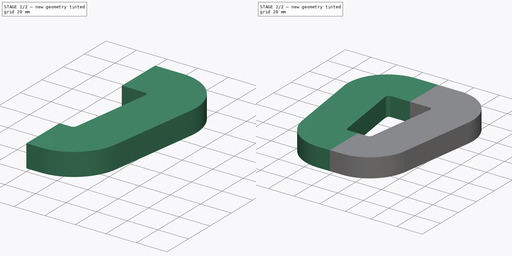
[diagram: build sequence overview — one tinted view per stage of 2, left to right]
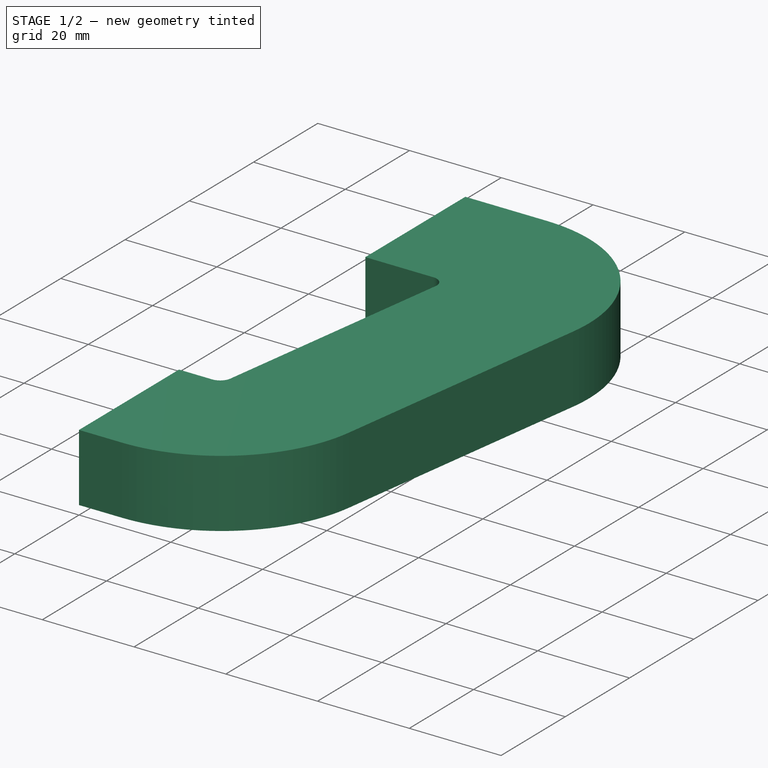
[diagram: stage 1 of 2 — iso view after this stage's code; geometry added in this stage tinted green]
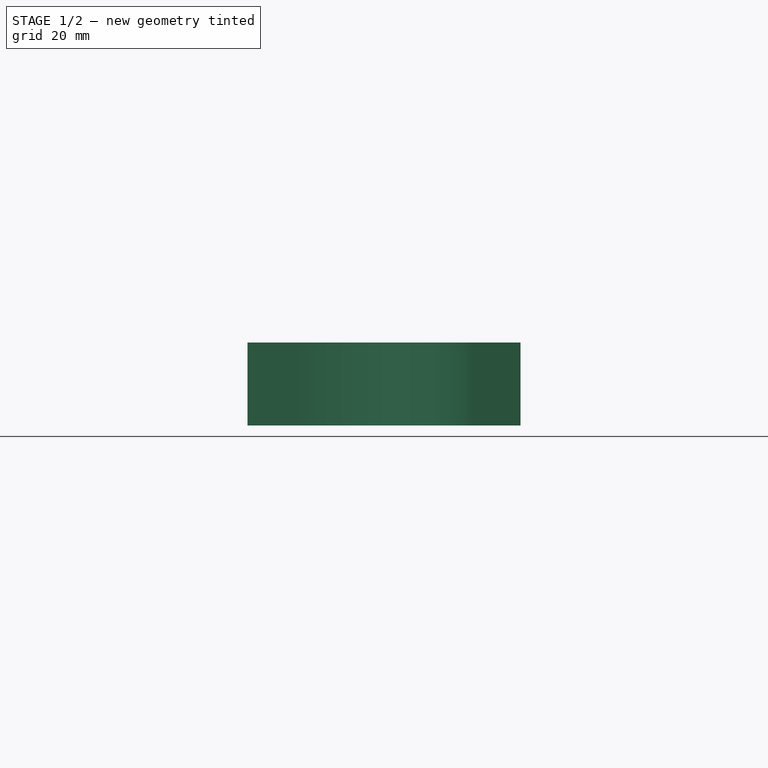
[diagram: stage 1 of 2 — front view after this stage's code; geometry added in this stage tinted green]
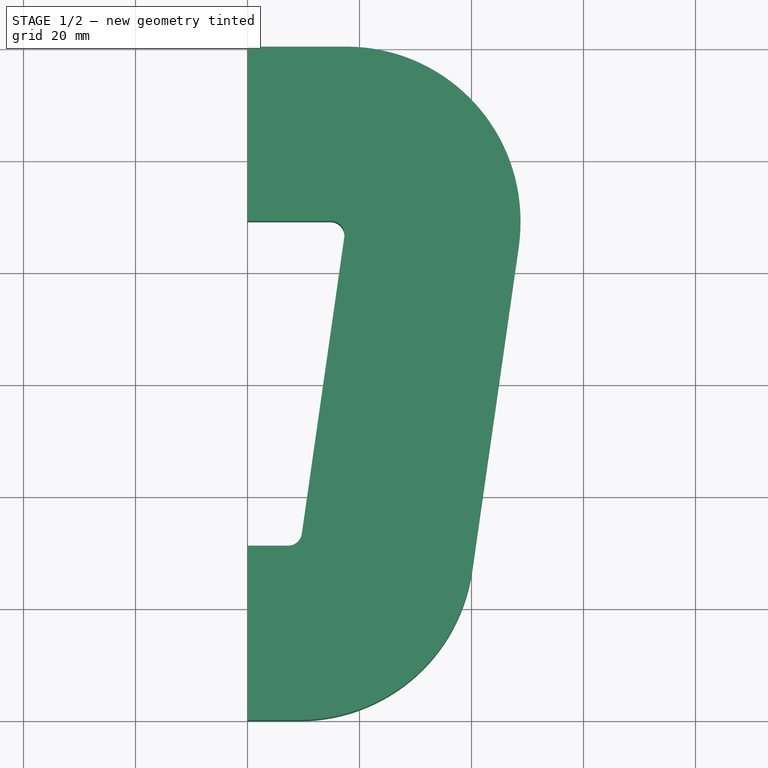
[diagram: stage 1 of 2 — top view after this stage's code; geometry added in this stage tinted green]
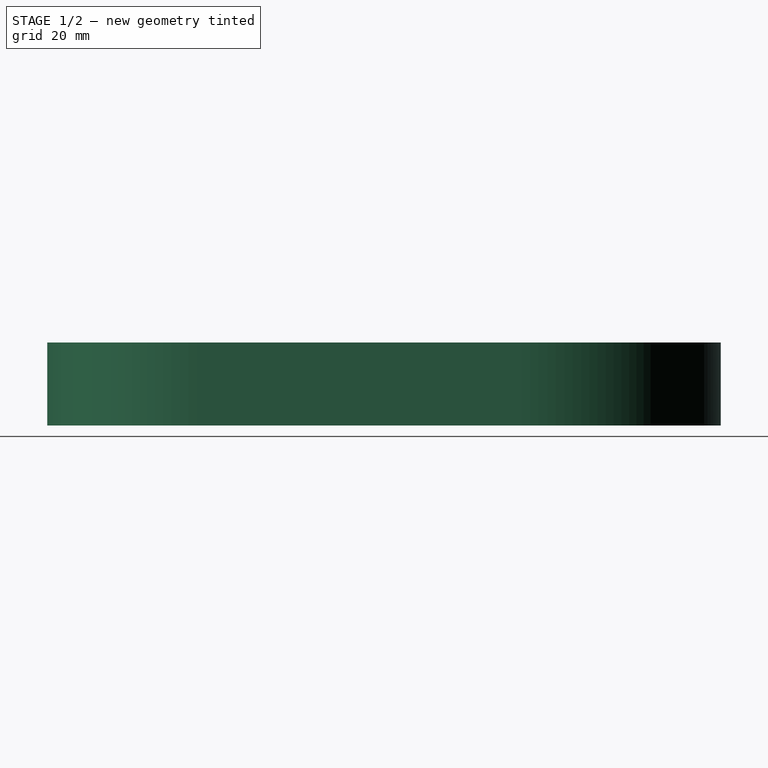
[diagram: stage 1 of 2 — right view after this stage's code; geometry added in this stage tinted green]
FCSTD DOCUMENT  (FreeCAD 0.21R33771 (Git))
Label: Stator_Coil
License: All rights reserved
LicenseURL: http://en.wikipedia.org/wiki/All_rights_reserved
objects: Sketcher::SketchObject×1, PartDesign::Pad×1, Spreadsheet::Sheet×1, PartDesign::Mirrored×1, PartDesign::Body×1, Part::Refine×1
note: 6 computed .brp shape members not serialized (recipe doc carries the construction recipe); baked Part::Feature solids carry a one-line shape summary decoded from their .brp
EXTERNAL_REF file=../../Master_of_Puppets.FCStd obj=Alternator
EXTERNAL_REF file=../../Master_of_Puppets.FCStd obj=Spreadsheet

FEATURE [Sketcher::SketchObject] Sketch
  FullyConstrained = true
  MapMode = 5
  Support = -> [XY_Plane]
  expr: Constraints[13] = Spreadsheet.CoilLegWidth
  expr: Constraints[27] = Spreadsheet.CoilHoleWidthAtOuterRadius / 2 - Spreadsheet.CoilWinderPinRadius
  expr: Constraints[30] = Spreadsheet.CoilHoleWidthAtInnerRadius / 2 - Spreadsheet.CoilWinderPinRadius
  expr: Constraints[31] = Spreadsheet.CoilLegWidth
  expr: Constraints[32] = Spreadsheet.CoilLegWidth
  expr: Constraints[4] = Spreadsheet.CoilWinderPinRadius
  expr: Constraints[5] = Spreadsheet.HoleLength
  sketch-geometry (12):
    g0: LineSegment StartX=0 StartY=89.13 StartZ=0 EndX=14.815 EndY=89.13 EndZ=0
    g1: LineSegment StartX=17.2898 StartY=86.2756 StartZ=0 EndX=9.69975 EndY=33.2756 EndZ=0
    g2: LineSegment StartX=7.225 StartY=31.13 StartZ=0 EndX=0 EndY=31.13 EndZ=0
    g3: ArcOfCircle CenterX=14.815 CenterY=86.63 CenterZ=0 NormalX=0 NormalY=0 NormalZ=1 AngleXU=0 Radius=2.5 StartAngle=6.14094 EndAngle=7.85398
    g4: ArcOfCircle CenterX=7.225 CenterY=33.63 CenterZ=0 NormalX=0 NormalY=0 NormalZ=1 AngleXU=0 Radius=2.5 StartAngle=4.71239 EndAngle=6.14094
    g5: LineSegment StartX=0 StartY=120.26 StartZ=0 EndX=17.6214 EndY=120.26 EndZ=0
    g6: LineSegment StartX=48.437 StartY=84.717 StartZ=0 EndX=40.131 EndY=26.717 EndZ=0
    g7: LineSegment StartX=9.31539 StartY=0 StartZ=0 EndX=0 EndY=0 EndZ=0
    g8: ArcOfCircle CenterX=17.6214 CenterY=89.13 CenterZ=0 NormalX=0 NormalY=0 NormalZ=1 AngleXU=0 Radius=31.13 StartAngle=6.14094 EndAngle=7.85398
    g9: ArcOfCircle CenterX=9.31539 CenterY=31.13 CenterZ=0 NormalX=0 NormalY=0 NormalZ=1 AngleXU=0 Radius=31.13 StartAngle=4.71239 EndAngle=6.14094
    g10: LineSegment StartX=0 StartY=120.26 StartZ=0 EndX=0 EndY=89.13 EndZ=0
    g11: LineSegment StartX=0 StartY=31.13 StartZ=0 EndX=0 EndY=0 EndZ=0
  constraints (33):
    c: Horizontal(g0)
    c: Horizontal(g2)
    c: Tangent(g1,g3) = 1.5708
    c: Tangent(g1,g4) = 1.5708
    c: Radius(g3) = 2.5
    c: DistanceY(g2,g0) = 58
    c: Horizontal(g5)
    c: Horizontal(g7)
    c: Parallel(g1,g6)
    c: Tangent(g5,g8) = 1.5708
    c: Tangent(g6,g8) = 1.5708
    c: Tangent(g6,g9) = 1.5708
    c: Tangent(g7,g9) = 1.5708
    c: Radius(g8) = 31.13
    c: Coincident(g7,g-1)
    c: PointOnObject(g2,g-2)
    c: PointOnObject(g0,g-2)
    c: PointOnObject(g5,g-2)
    c: Coincident(g10,g5)
    c: Coincident(g10,g0)
    c: Coincident(g11,g2)
    c: Coincident(g11,g7)
    c: Equal(g4,g3)
    c: Equal(g8,g9)
    c: Equal(g11,g10)
    c: Vertical(g0,g3)
    c: Coincident(g3,g0)
    c: DistanceX(g0,g0) = 14.815
    c: Coincident(g2,g4)
    c: Vertical(g4,g2)
    c: DistanceX(g2,g2) = 7.225
    c: DistanceY(g7,g2) = 31.13
    c: Distance(g6,g1) = 31.13
FEATURE [PartDesign::Pad] Pad
  AllowMultiFace = false
  Direction = (0,0,1)
  Length = 14.8
  Length2 = 100
  Profile = -> Sketch
  Type = 0
  expr: Length = Spreadsheet.CoilThickness
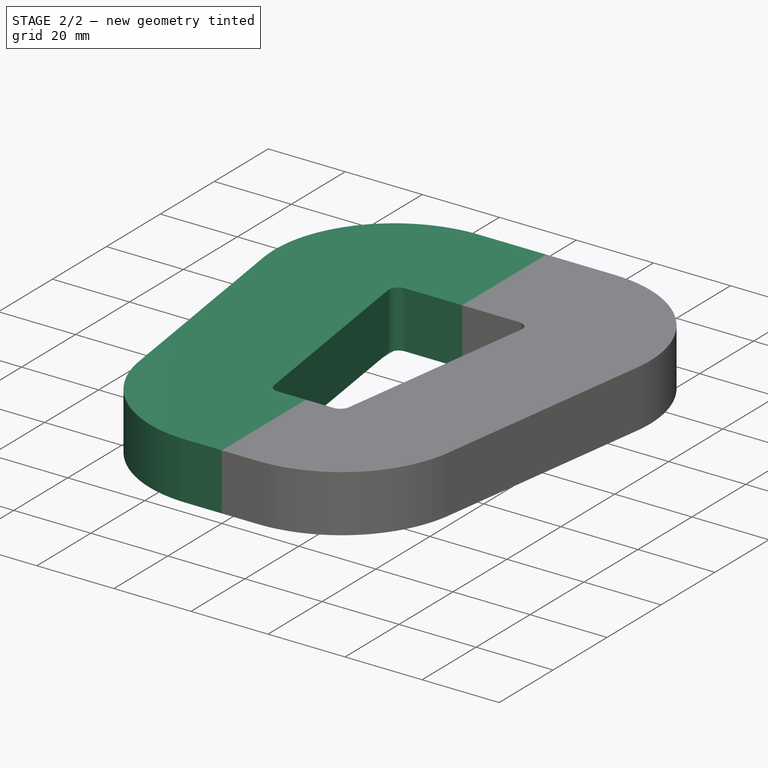
[diagram: stage 2 of 2 — iso view after this stage's code; geometry added in this stage tinted green]
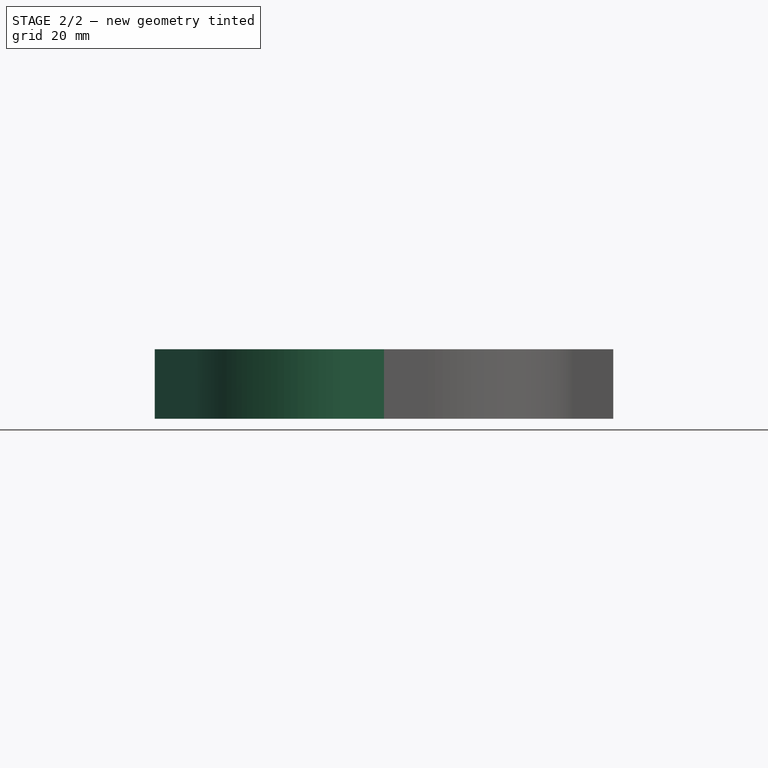
[diagram: stage 2 of 2 — front view after this stage's code; geometry added in this stage tinted green]
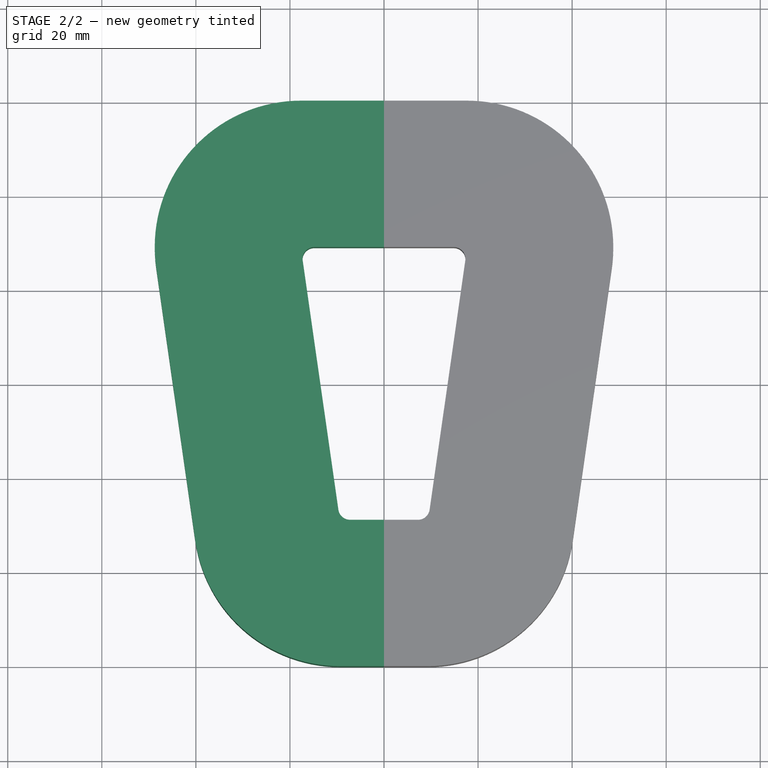
[diagram: stage 2 of 2 — top view after this stage's code; geometry added in this stage tinted green]
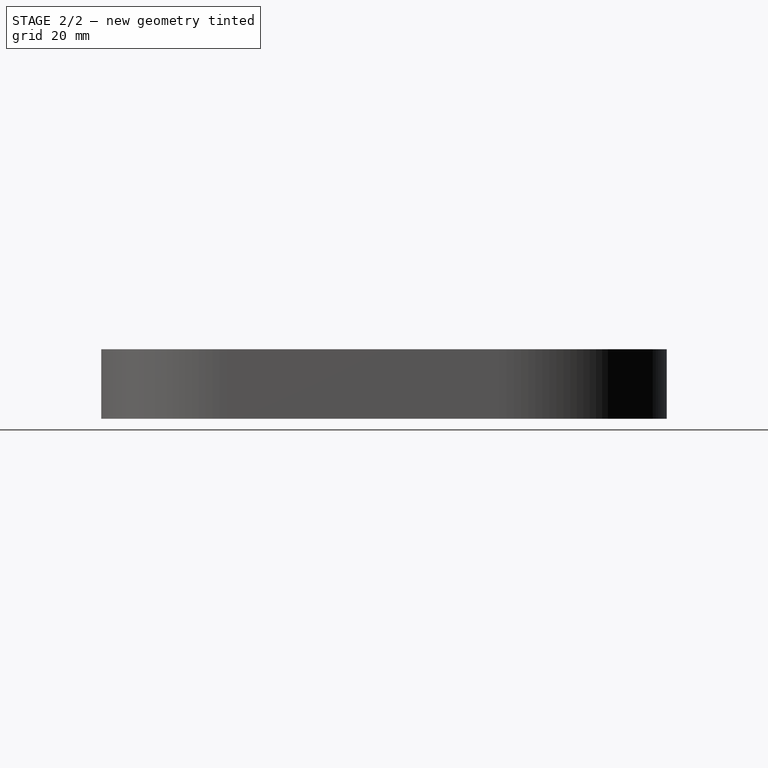
[diagram: stage 2 of 2 — right view after this stage's code; geometry added in this stage tinted green]
FEATURE [Spreadsheet::Sheet] Spreadsheet
  cells = A1='Inputs; A2='CoilLegWidth; B2(CoilLegWidth)==Master_of_Puppets#Spreadsheet.CoilLegWidth; A3='MagnetLength; B3(MagnetLength)==Master_of_Puppets#Spreadsheet.MagnetLength; A4='CoilHoleWidthAtOuterRadius; B4(CoilHoleWidthAtOuterRadius)==Master_of_Puppets#Spreadsheet.CoilHoleWidthAtOuterRadius; A5='CoilHoleWidthAtInnerRadius; B5(CoilHoleWidthAtInnerRadius)==Master_of_Puppets#Spreadsheet.CoilHoleWidthAtInnerRadius; A6='CoilWinderPinRadius; B6(CoilWinderPinRadius)==Master_of_Puppets#Alternator.CoilWinderPinRadius; A7='CoilThickness; B7(CoilThickness)==Master_of_Puppets#Alternator.CoilThickness; A8='Calculated; A9='HoleLength; B9(HoleLength)==MagnetLength; A10='MiddleLength; B10(MiddleLength)==CoilLegWidth + HoleLength / 2
FEATURE [PartDesign::Mirrored] Mirrored
  BaseFeature = -> Pad
  MirrorPlane = -> Sketch [V_Axis]
  Originals = -> [Pad]
FEATURE [PartDesign::Body] Body
  Group = -> [Sketch,Pad,Mirrored]
  Origin = -> Origin
  Tip = -> Mirrored
FEATURE [Part::Refine] Body001  label="Stator_Coil"
  Source = -> Body
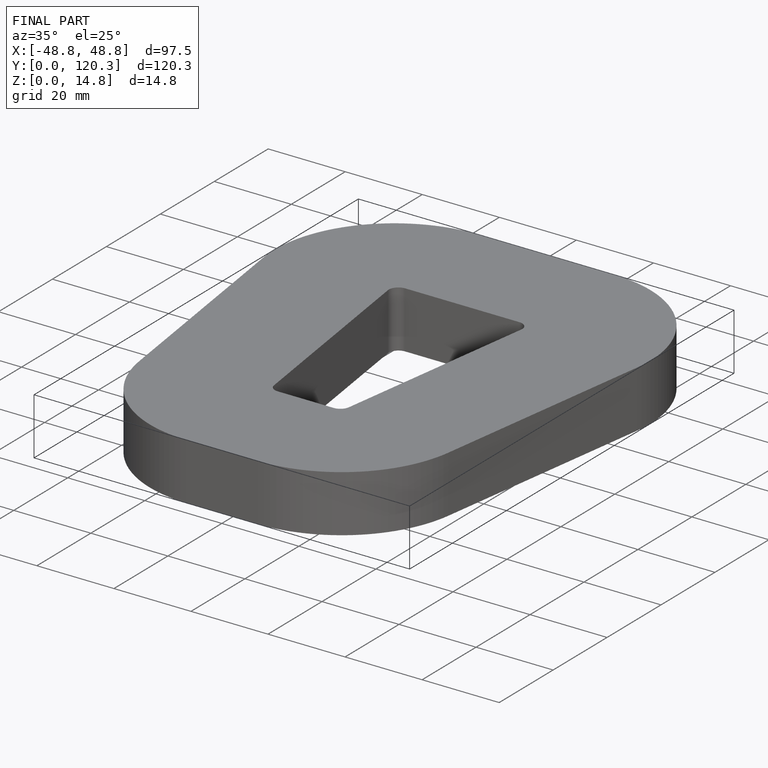
[diagram: finished part — iso view with bounding-box wireframe]
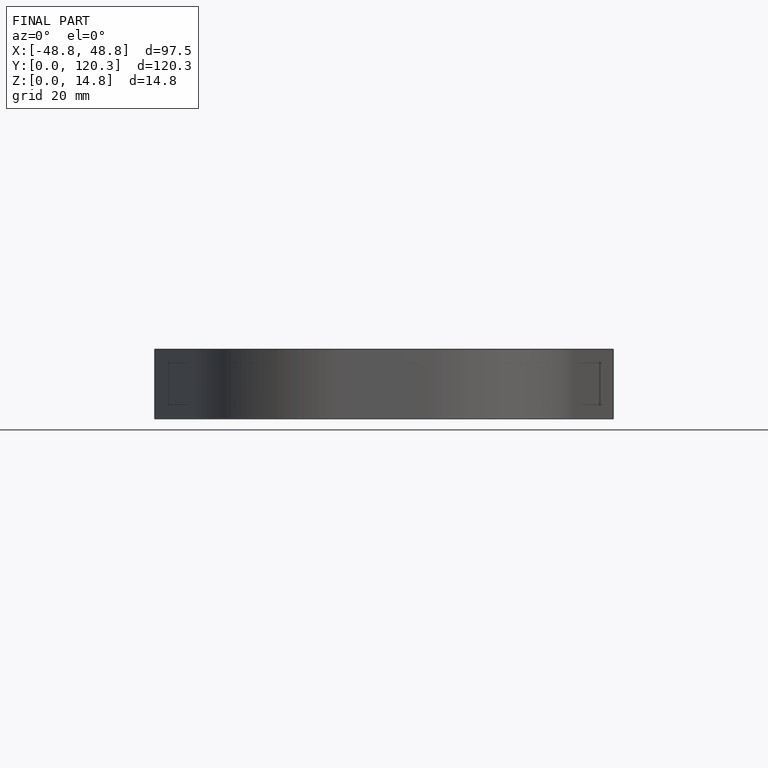
[diagram: finished part — front view with bounding-box wireframe]
